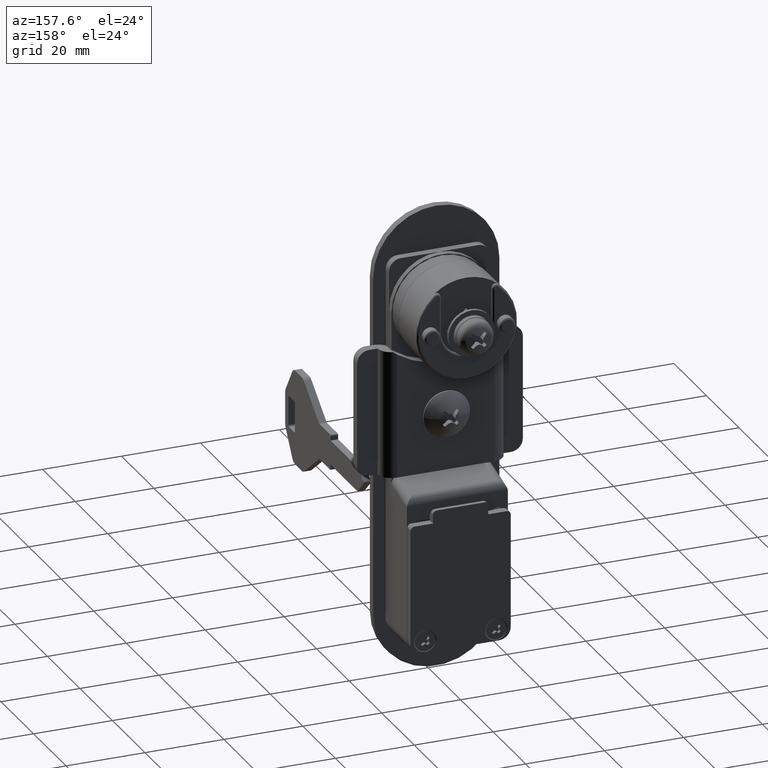
[diagram: clean part render]
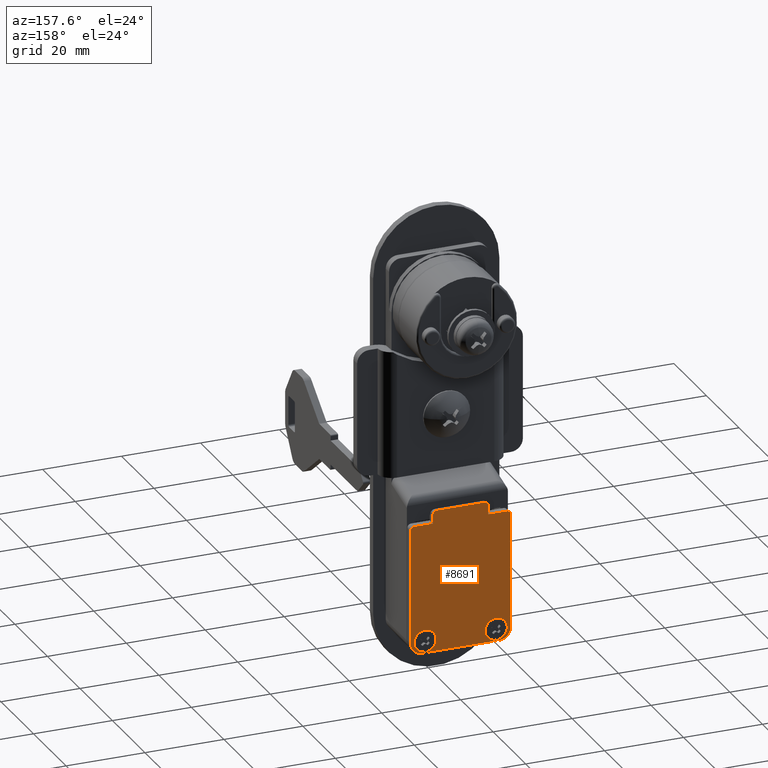
[diagram: same view with one face highlighted and labeled with its STEP entity id]
A machine part, auxiliary view. The second image highlights one B-rep face of the part: STEP entity #8691.
In plain terms, the highlighted planar face has unit normal (0, 1, 0).
Its self-contained STEP definition (entity closure, byte-faithful):
#1969 = CARTESIAN_POINT ( 'NONE',  ( 20.00000000000000000, -9.000000000000108400, -77.39999999999999100 ) ) ;
#2046 = CARTESIAN_POINT ( 'NONE',  ( 20.00000000000000000, 9.000000000000108400, -82.99999999999998600 ) ) ;
#2047 = DIRECTION ( 'NONE',  ( 0.0000000000000000000, 0.0000000000000000000, 1.000000000000000000 ) ) ;
#2048 = DIRECTION ( 'NONE',  ( 1.000000000000000000, 0.0000000000000000000, 0.0000000000000000000 ) ) ;
#2049 = CARTESIAN_POINT ( 'NONE',  ( 20.00000000000000000, 9.000000000000108400, -80.19999999999998900 ) ) ;
#2050 = AXIS2_PLACEMENT_3D ( 'NONE', #2049, #2048, #2047 ) ;
#2051 = CIRCLE ( 'NONE', #2050, 2.799999999999997200 ) ;
#2052 = CARTESIAN_POINT ( 'NONE',  ( 20.00000000000000000, 9.000000000000108400, -77.39999999999999100 ) ) ;
#2105 = CARTESIAN_POINT ( 'NONE',  ( 20.00000000000000000, -9.000000000000108400, -82.99999999999998600 ) ) ;
#2106 = DIRECTION ( 'NONE',  ( 0.0000000000000000000, 0.0000000000000000000, 1.000000000000000000 ) ) ;
#2107 = DIRECTION ( 'NONE',  ( -1.000000000000000000, 0.0000000000000000000, 0.0000000000000000000 ) ) ;
#2108 = CARTESIAN_POINT ( 'NONE',  ( 20.00000000000000000, -9.000000000000108400, -80.19999999999998900 ) ) ;
#2109 = AXIS2_PLACEMENT_3D ( 'NONE', #2108, #2107, #2106 ) ;
#2110 = CIRCLE ( 'NONE', #2109, 2.799999999999997200 ) ;
#2215 = CARTESIAN_POINT ( 'NONE',  ( 20.00000000000000000, -12.69999999999999900, -51.39999999999999900 ) ) ;
#2216 = DIRECTION ( 'NONE',  ( 0.0000000000000000000, 0.0000000000000000000, -1.000000000000000000 ) ) ;
#2217 = DIRECTION ( 'NONE',  ( 1.000000000000000000, 0.0000000000000000000, 0.0000000000000000000 ) ) ;
#2218 = CARTESIAN_POINT ( 'NONE',  ( 20.00000000000000000, -11.70000000000000100, -51.39999999999999900 ) ) ;
#2219 = AXIS2_PLACEMENT_3D ( 'NONE', #2218, #2217, #2216 ) ;
#2220 = CIRCLE ( 'NONE', #2219, 1.000000000000000900 ) ;
#2221 = CARTESIAN_POINT ( 'NONE',  ( 20.00000000000000000, -11.70000000000000100, -50.39999999999999900 ) ) ;
#2222 = DIRECTION ( 'NONE',  ( 0.0000000000000000000, -1.000000000000000000, 0.0000000000000000000 ) ) ;
#2223 = VECTOR ( 'NONE', #2222, 1000.000000000000000 ) ;
#2224 = CARTESIAN_POINT ( 'NONE',  ( 20.00000000000000000, -7.000000000000110100, -50.39999999999999900 ) ) ;
#2225 = LINE ( 'NONE', #2224, #2223 ) ;
#2226 = CARTESIAN_POINT ( 'NONE',  ( 20.00000000000000000, -7.000000000000110100, -50.39999999999999900 ) ) ;
#2227 = DIRECTION ( 'NONE',  ( 0.0000000000000000000, 0.0000000000000000000, -1.000000000000000000 ) ) ;
#2228 = VECTOR ( 'NONE', #2227, 1000.000000000000000 ) ;
#2229 = CARTESIAN_POINT ( 'NONE',  ( 20.00000000000000000, -7.000000000000110100, -48.20000000000000300 ) ) ;
#2230 = LINE ( 'NONE', #2229, #2228 ) ;
#2231 = CARTESIAN_POINT ( 'NONE',  ( 20.00000000000000000, -7.000000000000110100, -48.20000000000000300 ) ) ;
#2232 = CARTESIAN_POINT ( 'NONE',  ( 20.00000000000000000, 11.69999999999987800, -50.39999999999999900 ) ) ;
#2233 = DIRECTION ( 'NONE',  ( 0.0000000000000000000, 0.0000000000000000000, -1.000000000000000000 ) ) ;
#2234 = DIRECTION ( 'NONE',  ( 1.000000000000000000, 0.0000000000000000000, 0.0000000000000000000 ) ) ;
#2235 = CARTESIAN_POINT ( 'NONE',  ( 20.00000000000000000, 11.69999999999987800, -51.39999999999999900 ) ) ;
#2236 = AXIS2_PLACEMENT_3D ( 'NONE', #2235, #2234, #2233 ) ;
#2237 = CIRCLE ( 'NONE', #2236, 1.000000000000000900 ) ;
#2238 = CARTESIAN_POINT ( 'NONE',  ( 20.00000000000000000, 12.69999999999999900, -51.39999999999999900 ) ) ;
#2239 = DIRECTION ( 'NONE',  ( 0.0000000000000000000, 0.0000000000000000000, 1.000000000000000000 ) ) ;
#2240 = VECTOR ( 'NONE', #2239, 1000.000000000000000 ) ;
#2241 = CARTESIAN_POINT ( 'NONE',  ( 20.00000000000000000, 12.69999999999999900, -80.19999999999998900 ) ) ;
#2242 = LINE ( 'NONE', #2241, #2240 ) ;
#2245 = CARTESIAN_POINT ( 'NONE',  ( 20.00000000000000000, -6.000000000000000000, -48.20000000000000300 ) ) ;
#2246 = AXIS2_PLACEMENT_3D ( 'NONE', #2245, #2310, #2309 ) ;
#2247 = CIRCLE ( 'NONE', #2246, 1.000000000000000900 ) ;
#2248 = DIRECTION ( 'NONE',  ( 0.0000000000000000000, 0.0000000000000000000, 1.000000000000000000 ) ) ;
#2249 = DIRECTION ( 'NONE',  ( -1.000000000000000000, 0.0000000000000000000, 0.0000000000000000000 ) ) ;
#2250 = CARTESIAN_POINT ( 'NONE',  ( 20.00000000000000000, -9.000000000000108400, -80.19999999999998900 ) ) ;
#2251 = AXIS2_PLACEMENT_3D ( 'NONE', #2250, #2249, #2248 ) ;
#2252 = CIRCLE ( 'NONE', #2251, 2.799999999999997200 ) ;
#2253 = DIRECTION ( 'NONE',  ( 0.0000000000000000000, 1.000000000000000000, 0.0000000000000000000 ) ) ;
#2254 = DIRECTION ( 'NONE',  ( 1.000000000000000000, 0.0000000000000000000, 0.0000000000000000000 ) ) ;
#2255 = CARTESIAN_POINT ( 'NONE',  ( 20.00000000000000000, 0.0000000000000000000, 0.0000000000000000000 ) ) ;
#2256 = AXIS2_PLACEMENT_3D ( 'NONE', #2255, #2254, #2253 ) ;
#2257 = PLANE ( 'NONE',  #2256 ) ;
#2258 = FACE_BOUND ( 'NONE', #8738, .T. ) ;
#2259 = FACE_OUTER_BOUND ( 'NONE', #8696, .T. ) ;
#2260 = FACE_BOUND ( 'NONE', #8692, .T. ) ;
#2275 = CARTESIAN_POINT ( 'NONE',  ( 20.00000000000000000, -12.69999999999999900, -80.19999999999998900 ) ) ;
#2276 = DIRECTION ( 'NONE',  ( 0.0000000000000000000, 0.0000000000000000000, -1.000000000000000000 ) ) ;
#2277 = VECTOR ( 'NONE', #2276, 1000.000000000000000 ) ;
#2278 = CARTESIAN_POINT ( 'NONE',  ( 20.00000000000000000, -12.69999999999999900, -51.39999999999999900 ) ) ;
#2279 = LINE ( 'NONE', #2278, #2277 ) ;
#2308 = CARTESIAN_POINT ( 'NONE',  ( 20.00000000000000000, -6.000000000000000000, -47.19999999999999600 ) ) ;
#2309 = DIRECTION ( 'NONE',  ( 0.0000000000000000000, 0.0000000000000000000, -1.000000000000000000 ) ) ;
#2310 = DIRECTION ( 'NONE',  ( 1.000000000000000000, 0.0000000000000000000, 0.0000000000000000000 ) ) ;
#2311 = DIRECTION ( 'NONE',  ( 0.0000000000000000000, 0.0000000000000000000, 1.000000000000000000 ) ) ;
#2312 = VECTOR ( 'NONE', #2311, 1000.000000000000000 ) ;
#2313 = CARTESIAN_POINT ( 'NONE',  ( 20.00000000000000000, 7.000000000000000000, -50.39999999999999900 ) ) ;
#2314 = LINE ( 'NONE', #2313, #2312 ) ;
#2315 = CARTESIAN_POINT ( 'NONE',  ( 20.00000000000000000, 7.000000000000000000, -50.39999999999999900 ) ) ;
#2316 = DIRECTION ( 'NONE',  ( 0.0000000000000000000, -1.000000000000000000, 0.0000000000000000000 ) ) ;
#2317 = VECTOR ( 'NONE', #2316, 1000.000000000000000 ) ;
#2318 = CARTESIAN_POINT ( 'NONE',  ( 20.00000000000000000, 11.69999999999987800, -50.39999999999999900 ) ) ;
#2319 = LINE ( 'NONE', #2318, #2317 ) ;
#2346 = CARTESIAN_POINT ( 'NONE',  ( 20.00000000000000000, 9.699999999999819900, -80.19999999999998900 ) ) ;
#2347 = AXIS2_PLACEMENT_3D ( 'NONE', #2346, #2407, #2406 ) ;
#2348 = CIRCLE ( 'NONE', #2347, 3.000000000000002700 ) ;
#2349 = CARTESIAN_POINT ( 'NONE',  ( 20.00000000000000000, 9.699999999999819900, -83.20000000000000300 ) ) ;
#2350 = DIRECTION ( 'NONE',  ( 0.0000000000000000000, 1.000000000000000000, 0.0000000000000000000 ) ) ;
#2351 = VECTOR ( 'NONE', #2350, 1000.000000000000000 ) ;
#2352 = CARTESIAN_POINT ( 'NONE',  ( 20.00000000000000000, -9.700000000000001100, -83.20000000000000300 ) ) ;
#2353 = LINE ( 'NONE', #2352, #2351 ) ;
#2354 = CARTESIAN_POINT ( 'NONE',  ( 20.00000000000000000, -9.700000000000001100, -83.20000000000000300 ) ) ;
#2355 = DIRECTION ( 'NONE',  ( 0.0000000000000000000, 0.0000000000000000000, -1.000000000000000000 ) ) ;
#2356 = DIRECTION ( 'NONE',  ( 1.000000000000000000, 0.0000000000000000000, 0.0000000000000000000 ) ) ;
#2357 = CARTESIAN_POINT ( 'NONE',  ( 20.00000000000000000, -9.700000000000001100, -80.19999999999998900 ) ) ;
#2358 = AXIS2_PLACEMENT_3D ( 'NONE', #2357, #2356, #2355 ) ;
#2359 = CIRCLE ( 'NONE', #2358, 3.000000000000002700 ) ;
#2360 = DIRECTION ( 'NONE',  ( 0.0000000000000000000, 0.0000000000000000000, 1.000000000000000000 ) ) ;
#2361 = DIRECTION ( 'NONE',  ( 1.000000000000000000, 0.0000000000000000000, 0.0000000000000000000 ) ) ;
#2362 = CARTESIAN_POINT ( 'NONE',  ( 20.00000000000000000, 9.000000000000108400, -80.19999999999998900 ) ) ;
#2363 = AXIS2_PLACEMENT_3D ( 'NONE', #2362, #2361, #2360 ) ;
#2364 = CIRCLE ( 'NONE', #2363, 2.799999999999997200 ) ;
#2365 = DIRECTION ( 'NONE',  ( 0.0000000000000000000, -1.000000000000000000, 0.0000000000000000000 ) ) ;
#2366 = VECTOR ( 'NONE', #2365, 1000.000000000000000 ) ;
#2367 = CARTESIAN_POINT ( 'NONE',  ( 20.00000000000000000, 5.999999999999770000, -47.19999999999999600 ) ) ;
#2368 = LINE ( 'NONE', #2367, #2366 ) ;
#2369 = CARTESIAN_POINT ( 'NONE',  ( 20.00000000000000000, 5.999999999999770000, -47.19999999999999600 ) ) ;
#2370 = DIRECTION ( 'NONE',  ( 0.0000000000000000000, 0.0000000000000000000, -1.000000000000000000 ) ) ;
#2371 = DIRECTION ( 'NONE',  ( 1.000000000000000000, 0.0000000000000000000, 0.0000000000000000000 ) ) ;
#2372 = CARTESIAN_POINT ( 'NONE',  ( 20.00000000000000000, 5.999999999999770000, -48.20000000000000300 ) ) ;
#2373 = AXIS2_PLACEMENT_3D ( 'NONE', #2372, #2371, #2370 ) ;
#2374 = CIRCLE ( 'NONE', #2373, 1.000000000000000900 ) ;
#2375 = CARTESIAN_POINT ( 'NONE',  ( 20.00000000000000000, 7.000000000000000000, -48.20000000000000300 ) ) ;
#2405 = CARTESIAN_POINT ( 'NONE',  ( 20.00000000000000000, 12.69999999999982200, -80.19999999999998900 ) ) ;
#2406 = DIRECTION ( 'NONE',  ( 0.0000000000000000000, 0.0000000000000000000, -1.000000000000000000 ) ) ;
#2407 = DIRECTION ( 'NONE',  ( 1.000000000000000000, 0.0000000000000000000, 0.0000000000000000000 ) ) ;
#8540 = VERTEX_POINT ( 'NONE', #1969 ) ;
#8563 = VERTEX_POINT ( 'NONE', #2052 ) ;
#8565 = EDGE_CURVE ( 'NONE', #8563, #8566, #2051, .T. ) ;
#8566 = VERTEX_POINT ( 'NONE', #2046 ) ;
#8595 = EDGE_CURVE ( 'NONE', #8596, #8540, #2110, .T. ) ;
#8596 = VERTEX_POINT ( 'NONE', #2105 ) ;
#8663 = ORIENTED_EDGE ( 'NONE', *, *, #8664, .T. ) ;
#8664 = EDGE_CURVE ( 'NONE', #8751, #8665, #2242, .T. ) ;
#8665 = VERTEX_POINT ( 'NONE', #2238 ) ;
#8666 = ORIENTED_EDGE ( 'NONE', *, *, #8667, .T. ) ;
#8667 = EDGE_CURVE ( 'NONE', #8665, #8668, #2237, .T. ) ;
#8668 = VERTEX_POINT ( 'NONE', #2232 ) ;
#8669 = ORIENTED_EDGE ( 'NONE', *, *, #8728, .T. ) ;
#8670 = VERTEX_POINT ( 'NONE', #2231 ) ;
#8671 = ORIENTED_EDGE ( 'NONE', *, *, #8672, .T. ) ;
#8672 = EDGE_CURVE ( 'NONE', #8670, #8673, #2230, .T. ) ;
#8673 = VERTEX_POINT ( 'NONE', #2226 ) ;
#8674 = ORIENTED_EDGE ( 'NONE', *, *, #8675, .T. ) ;
#8675 = EDGE_CURVE ( 'NONE', #8673, #8676, #2225, .T. ) ;
#8676 = VERTEX_POINT ( 'NONE', #2221 ) ;
#8677 = ORIENTED_EDGE ( 'NONE', *, *, #8678, .T. ) ;
#8678 = EDGE_CURVE ( 'NONE', #8676, #8679, #2220, .T. ) ;
#8679 = VERTEX_POINT ( 'NONE', #2215 ) ;
#8680 = ORIENTED_EDGE ( 'NONE', *, *, #8681, .T. ) ;
#8681 = EDGE_CURVE ( 'NONE', #8679, #8682, #2279, .T. ) ;
#8682 = VERTEX_POINT ( 'NONE', #2275 ) ;
#8691 = ADVANCED_FACE ( 'NONE', ( #2260, #2259, #2258 ), #2257, .T. ) ;
#8692 = EDGE_LOOP ( 'NONE', ( #8693, #8694 ) ) ;
#8693 = ORIENTED_EDGE ( 'NONE', *, *, #8595, .T. ) ;
#8694 = ORIENTED_EDGE ( 'NONE', *, *, #8695, .T. ) ;
#8695 = EDGE_CURVE ( 'NONE', #8540, #8596, #2252, .T. ) ;
#8696 = EDGE_LOOP ( 'NONE', ( #8697, #8671, #8674, #8677, #8680, #8743, #8746, #8749, #8663, #8666, #8669, #8730, #8733, #8736 ) ) ;
#8697 = ORIENTED_EDGE ( 'NONE', *, *, #8698, .T. ) ;
#8698 = EDGE_CURVE ( 'NONE', #8699, #8670, #2247, .T. ) ;
#8699 = VERTEX_POINT ( 'NONE', #2308 ) ;
#8728 = EDGE_CURVE ( 'NONE', #8668, #8729, #2319, .T. ) ;
#8729 = VERTEX_POINT ( 'NONE', #2315 ) ;
#8730 = ORIENTED_EDGE ( 'NONE', *, *, #8731, .T. ) ;
#8731 = EDGE_CURVE ( 'NONE', #8729, #8732, #2314, .T. ) ;
#8732 = VERTEX_POINT ( 'NONE', #2375 ) ;
#8733 = ORIENTED_EDGE ( 'NONE', *, *, #8734, .T. ) ;
#8734 = EDGE_CURVE ( 'NONE', #8732, #8735, #2374, .T. ) ;
#8735 = VERTEX_POINT ( 'NONE', #2369 ) ;
#8736 = ORIENTED_EDGE ( 'NONE', *, *, #8737, .T. ) ;
#8737 = EDGE_CURVE ( 'NONE', #8735, #8699, #2368, .T. ) ;
#8738 = EDGE_LOOP ( 'NONE', ( #8739, #8741 ) ) ;
#8739 = ORIENTED_EDGE ( 'NONE', *, *, #8740, .F. ) ;
#8740 = EDGE_CURVE ( 'NONE', #8566, #8563, #2364, .T. ) ;
#8741 = ORIENTED_EDGE ( 'NONE', *, *, #8565, .F. ) ;
#8743 = ORIENTED_EDGE ( 'NONE', *, *, #8744, .T. ) ;
#8744 = EDGE_CURVE ( 'NONE', #8682, #8745, #2359, .T. ) ;
#8745 = VERTEX_POINT ( 'NONE', #2354 ) ;
#8746 = ORIENTED_EDGE ( 'NONE', *, *, #8747, .T. ) ;
#8747 = EDGE_CURVE ( 'NONE', #8745, #8748, #2353, .T. ) ;
#8748 = VERTEX_POINT ( 'NONE', #2349 ) ;
#8749 = ORIENTED_EDGE ( 'NONE', *, *, #8750, .T. ) ;
#8750 = EDGE_CURVE ( 'NONE', #8748, #8751, #2348, .T. ) ;
#8751 = VERTEX_POINT ( 'NONE', #2405 ) ;